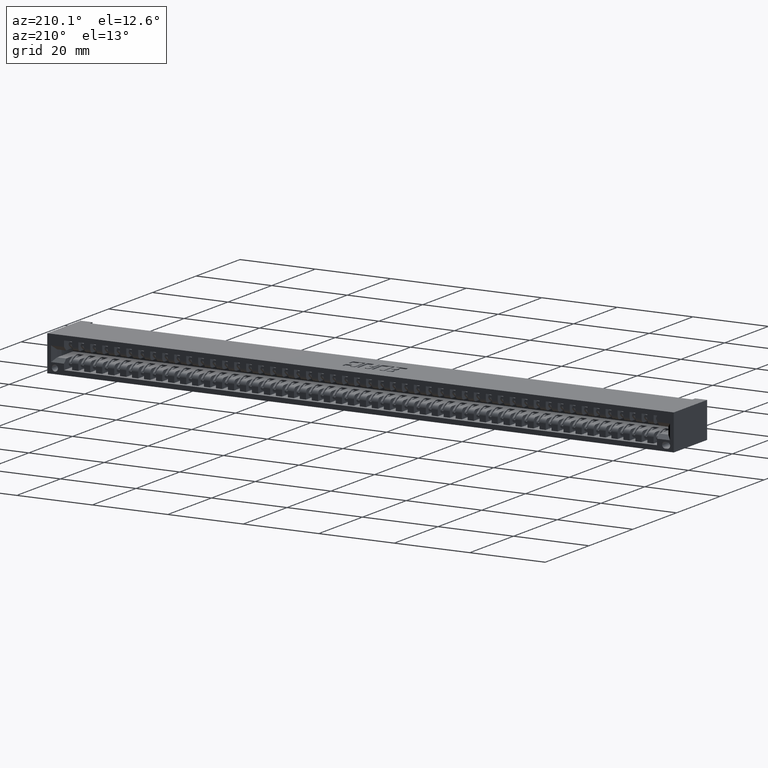
[diagram: clean part render]
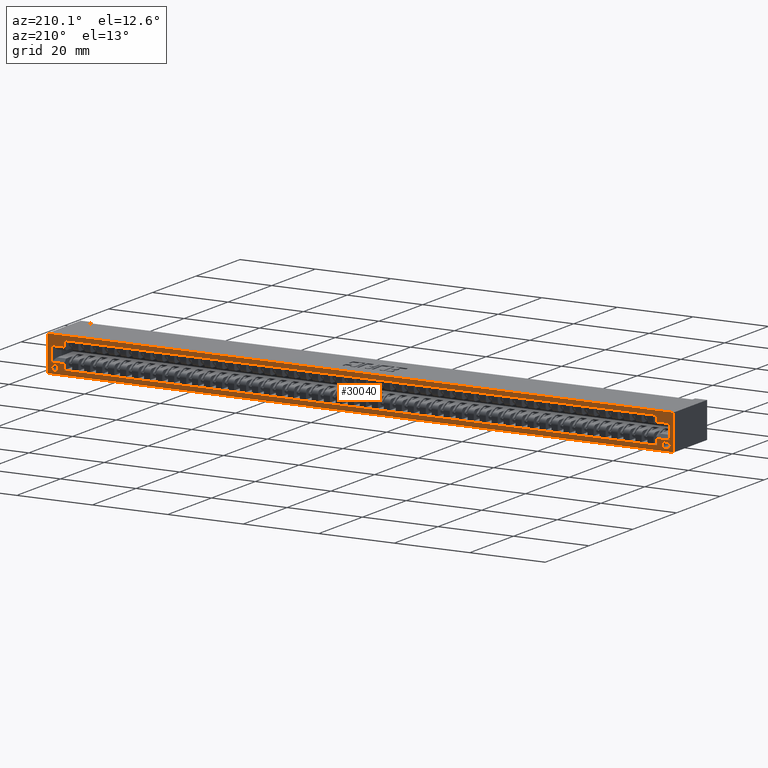
[diagram: same view with one face highlighted and labeled with its STEP entity id]
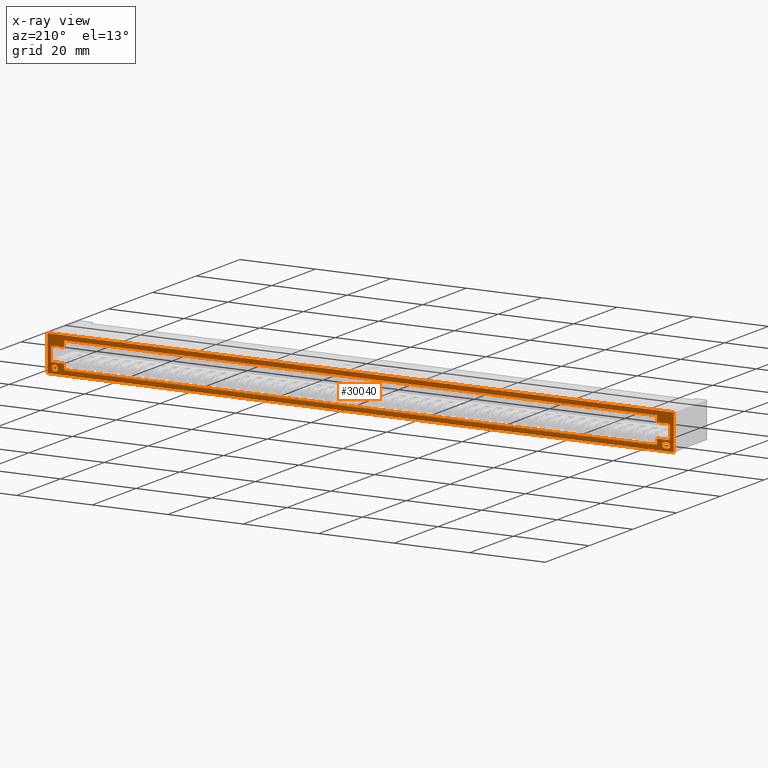
[diagram: x-ray of the same camera — body ghosted, the highlighted face saturated]
A machine part, auxiliary view. The second image highlights one B-rep face of the part: STEP entity #30040.
The next image is the same camera in x-ray: the body ghosted, the highlighted face saturated — about 0% of this face is hidden behind the body in this view.
In plain terms, the highlighted planar face has unit normal (0, -1, 0).
Its self-contained STEP definition (entity closure, byte-faithful):
#250 = CARTESIAN_POINT ( 'NONE',  ( 6.717500000000002900, 0.5999999999999999800, -0.3130000000000000600 ) ) ;
#653 = CARTESIAN_POINT ( 'NONE',  ( 0.3315000000000000200, 0.5999999999999999800, -0.3440000000000000800 ) ) ;
#1328 = CARTESIAN_POINT ( 'NONE',  ( 0.4375000000000000600, 0.5999999999999999800, -0.3224999999999998400 ) ) ;
#1540 = CARTESIAN_POINT ( 'NONE',  ( 0.4375000000000000600, 0.5999999999999999800, -0.2619999999999996800 ) ) ;
#1578 = ORIENTED_EDGE ( 'NONE', *, *, #14522, .F. ) ;
#1626 = CARTESIAN_POINT ( 'NONE',  ( 0.3315000000000000200, 0.5999999999999999800, -0.2820000000000000800 ) ) ;
#1812 = LINE ( 'NONE', #20284, #27057 ) ;
#1988 = EDGE_CURVE ( 'NONE', #6379, #13972, #26928, .T. ) ;
#2016 = VECTOR ( 'NONE', #6618, 39.37007874015748100 ) ;
#2038 = CARTESIAN_POINT ( 'NONE',  ( 0.3315000000000000700, 0.5999999999999999800, -0.3130000000000000600 ) ) ;
#2219 = EDGE_CURVE ( 'NONE', #20647, #12980, #16965, .T. ) ;
#2405 = CARTESIAN_POINT ( 'NONE',  ( 0.4375000000000000600, 0.5999999999999998700, -0.1080000000000005000 ) ) ;
#2818 = DIRECTION ( 'NONE',  ( 0.0000000000000000000, 0.0000000000000000000, 1.000000000000000000 ) ) ;
#3021 = VERTEX_POINT ( 'NONE', #29944 ) ;
#3065 = LINE ( 'NONE', #5318, #4252 ) ;
#3125 = VERTEX_POINT ( 'NONE', #8404 ) ;
#3377 = LINE ( 'NONE', #11427, #27874 ) ;
#3465 = DIRECTION ( 'NONE',  ( -0.0000000000000000000, -0.0000000000000000000, 1.000000000000000000 ) ) ;
#3680 = CARTESIAN_POINT ( 'NONE',  ( 6.622500000000000500, 0.5999999999999999800, -0.2619999999999996800 ) ) ;
#3760 = VERTEX_POINT ( 'NONE', #10284 ) ;
#3768 = ORIENTED_EDGE ( 'NONE', *, *, #7757, .T. ) ;
#3865 = CARTESIAN_POINT ( 'NONE',  ( 6.797500000000002100, 0.5999999999999999800, -0.3699999999999989400 ) ) ;
#4156 = DIRECTION ( 'NONE',  ( 0.0000000000000000000, 0.0000000000000000000, 1.000000000000000000 ) ) ;
#4226 = DIRECTION ( 'NONE',  ( 0.0000000000000000000, -2.483498176058424700E-016, 1.000000000000000000 ) ) ;
#4252 = VECTOR ( 'NONE', #27442, 39.37007874015748100 ) ;
#4406 = CARTESIAN_POINT ( 'NONE',  ( -1.321351533372425100E-033, 0.5999999999999999800, -0.1080000000000005000 ) ) ;
#4630 = DIRECTION ( 'NONE',  ( 0.0000000000000000000, 0.0000000000000000000, 1.000000000000000000 ) ) ;
#5173 = VERTEX_POINT ( 'NONE', #29647 ) ;
#5318 = CARTESIAN_POINT ( 'NONE',  ( 0.0000000000000000000, 0.5999999999999999800, -0.3700000000000001600 ) ) ;
#6052 = ORIENTED_EDGE ( 'NONE', *, *, #13263, .T. ) ;
#6379 = VERTEX_POINT ( 'NONE', #26903 ) ;
#6407 = ORIENTED_EDGE ( 'NONE', *, *, #20281, .T. ) ;
#6618 = DIRECTION ( 'NONE',  ( -1.000000000000000000, 0.0000000000000000000, 0.0000000000000000000 ) ) ;
#6661 = VECTOR ( 'NONE', #25716, 39.37007874015748100 ) ;
#6827 = ORIENTED_EDGE ( 'NONE', *, *, #19364, .T. ) ;
#7146 = EDGE_CURVE ( 'NONE', #17540, #12764, #20042, .T. ) ;
#7391 = FACE_OUTER_BOUND ( 'NONE', #8756, .T. ) ;
#7476 = EDGE_CURVE ( 'NONE', #23067, #17576, #30368, .T. ) ;
#7757 = EDGE_CURVE ( 'NONE', #25299, #3021, #25365, .T. ) ;
#7833 = DIRECTION ( 'NONE',  ( 0.0000000000000000000, -2.483498176058424700E-016, 1.000000000000000000 ) ) ;
#7882 = ORIENTED_EDGE ( 'NONE', *, *, #1988, .F. ) ;
#7962 = EDGE_CURVE ( 'NONE', #13972, #10840, #18102, .T. ) ;
#8055 = LINE ( 'NONE', #23600, #26052 ) ;
#8098 = EDGE_LOOP ( 'NONE', ( #29042, #15250 ) ) ;
#8170 = DIRECTION ( 'NONE',  ( 1.000000000000000000, 0.0000000000000000000, 0.0000000000000000000 ) ) ;
#8285 = VERTEX_POINT ( 'NONE', #3865 ) ;
#8404 = CARTESIAN_POINT ( 'NONE',  ( 6.717500000000002900, 0.5999999999999999800, -0.3450000000000003600 ) ) ;
#8588 = ORIENTED_EDGE ( 'NONE', *, *, #13516, .T. ) ;
#8727 = DIRECTION ( 'NONE',  ( 1.000000000000000000, 0.0000000000000000000, 3.104372720073037000E-015 ) ) ;
#8756 = EDGE_LOOP ( 'NONE', ( #26638, #28676, #6052, #14917 ) ) ;
#8807 = ORIENTED_EDGE ( 'NONE', *, *, #26049, .T. ) ;
#8875 = VECTOR ( 'NONE', #4226, 39.37007874015748100 ) ;
#9137 = DIRECTION ( 'NONE',  ( 0.0000000000000000000, -1.000000000000000000, 0.0000000000000000000 ) ) ;
#9314 = DIRECTION ( 'NONE',  ( -1.000000000000000000, 0.0000000000000000000, 0.0000000000000000000 ) ) ;
#9917 = VECTOR ( 'NONE', #21703, 39.37007874015748100 ) ;
#10184 = AXIS2_PLACEMENT_3D ( 'NONE', #14415, #11858, #21654 ) ;
#10260 = DIRECTION ( 'NONE',  ( 0.0000000000000000000, -2.483498176058424700E-016, 1.000000000000000000 ) ) ;
#10284 = CARTESIAN_POINT ( 'NONE',  ( 6.757500000000001200, 0.5999999999999999800, -0.1080000000000005000 ) ) ;
#10405 = VERTEX_POINT ( 'NONE', #27363 ) ;
#10657 = ORIENTED_EDGE ( 'NONE', *, *, #7962, .F. ) ;
#10840 = VERTEX_POINT ( 'NONE', #30325 ) ;
#11414 = ORIENTED_EDGE ( 'NONE', *, *, #7476, .F. ) ;
#11427 = CARTESIAN_POINT ( 'NONE',  ( 0.4375000000000000600, 0.5999999999999998700, -0.04750000000000024300 ) ) ;
#11858 = DIRECTION ( 'NONE',  ( 0.0000000000000000000, 1.000000000000000000, 0.0000000000000000000 ) ) ;
#12025 = FACE_BOUND ( 'NONE', #31460, .T. ) ;
#12629 = LINE ( 'NONE', #21516, #9917 ) ;
#12764 = VERTEX_POINT ( 'NONE', #23959 ) ;
#12781 = LINE ( 'NONE', #28061, #6661 ) ;
#12861 = DIRECTION ( 'NONE',  ( 0.0000000000000000000, 0.0000000000000000000, -1.000000000000000000 ) ) ;
#12980 = VERTEX_POINT ( 'NONE', #3680 ) ;
#13064 = VECTOR ( 'NONE', #29948, 39.37007874015748100 ) ;
#13069 = DIRECTION ( 'NONE',  ( 0.0000000000000000000, 0.0000000000000000000, 1.000000000000000000 ) ) ;
#13263 = EDGE_CURVE ( 'NONE', #8285, #15379, #3065, .T. ) ;
#13516 = EDGE_CURVE ( 'NONE', #5173, #3760, #8055, .T. ) ;
#13537 = VECTOR ( 'NONE', #10260, 39.37007874015748100 ) ;
#13972 = VERTEX_POINT ( 'NONE', #1626 ) ;
#14415 = CARTESIAN_POINT ( 'NONE',  ( 0.3534999999999999300, 0.5999999999999999800, -0.3130000000000000600 ) ) ;
#14522 = EDGE_CURVE ( 'NONE', #31013, #16533, #3377, .T. ) ;
#14917 = ORIENTED_EDGE ( 'NONE', *, *, #23742, .F. ) ;
#15181 = AXIS2_PLACEMENT_3D ( 'NONE', #2038, #19174, #4630 ) ;
#15250 = ORIENTED_EDGE ( 'NONE', *, *, #25457, .F. ) ;
#15306 = EDGE_CURVE ( 'NONE', #26081, #3125, #22464, .T. ) ;
#15344 = ORIENTED_EDGE ( 'NONE', *, *, #26171, .F. ) ;
#15379 = VERTEX_POINT ( 'NONE', #17350 ) ;
#15490 = LINE ( 'NONE', #4406, #22746 ) ;
#16108 = VECTOR ( 'NONE', #3465, 39.37007874015748100 ) ;
#16154 = CARTESIAN_POINT ( 'NONE',  ( 6.717500000000002900, 0.5999999999999999800, -0.3130000000000000600 ) ) ;
#16223 = EDGE_CURVE ( 'NONE', #12980, #5173, #1812, .T. ) ;
#16253 = DIRECTION ( 'NONE',  ( 0.0000000000000000000, 1.000000000000000000, 0.0000000000000000000 ) ) ;
#16533 = VERTEX_POINT ( 'NONE', #29232 ) ;
#16934 = ORIENTED_EDGE ( 'NONE', *, *, #23562, .T. ) ;
#16965 = LINE ( 'NONE', #29505, #13537 ) ;
#16981 = VECTOR ( 'NONE', #7833, 39.37007874015748100 ) ;
#17160 = CARTESIAN_POINT ( 'NONE',  ( 6.622500000000000500, 0.5999999999999999800, -0.3224999999999996800 ) ) ;
#17321 = VECTOR ( 'NONE', #8727, 39.37007874015748100 ) ;
#17350 = CARTESIAN_POINT ( 'NONE',  ( 0.2625000000000000100, 0.5999999999999999800, -0.3700000000000001600 ) ) ;
#17540 = VERTEX_POINT ( 'NONE', #22178 ) ;
#17576 = VERTEX_POINT ( 'NONE', #1540 ) ;
#18071 = LINE ( 'NONE', #27851, #16108 ) ;
#18102 = LINE ( 'NONE', #23502, #17321 ) ;
#18332 = CIRCLE ( 'NONE', #26517, 0.03200000000000033400 ) ;
#18741 = VECTOR ( 'NONE', #12861, 39.37007874015748100 ) ;
#19125 = LINE ( 'NONE', #29428, #24093 ) ;
#19174 = DIRECTION ( 'NONE',  ( 0.0000000000000000000, 1.000000000000000000, 0.0000000000000000000 ) ) ;
#19177 = ORIENTED_EDGE ( 'NONE', *, *, #16223, .T. ) ;
#19364 = EDGE_CURVE ( 'NONE', #3760, #30440, #15490, .T. ) ;
#19887 = DIRECTION ( 'NONE',  ( 0.0000000000000000000, 0.0000000000000000000, -1.000000000000000000 ) ) ;
#20012 = CARTESIAN_POINT ( 'NONE',  ( 0.4375000000000000600, 0.5999999999999999800, -0.3224999999999998400 ) ) ;
#20042 = LINE ( 'NONE', #22809, #29241 ) ;
#20281 = EDGE_CURVE ( 'NONE', #10405, #17576, #12781, .T. ) ;
#20284 = CARTESIAN_POINT ( 'NONE',  ( -1.321351533372425100E-033, 0.5999999999999999800, -0.2619999999999996800 ) ) ;
#20411 = CARTESIAN_POINT ( 'NONE',  ( 0.3534999999999999300, 0.5999999999999999800, -0.3440000000000001900 ) ) ;
#20647 = VERTEX_POINT ( 'NONE', #24853 ) ;
#21024 = CARTESIAN_POINT ( 'NONE',  ( -1.321351533372425100E-033, 0.5999999999999999800, -0.1080000000000005000 ) ) ;
#21125 = DIRECTION ( 'NONE',  ( 1.000000000000000000, -0.0000000000000000000, -0.0000000000000000000 ) ) ;
#21377 = EDGE_CURVE ( 'NONE', #25299, #31013, #29165, .T. ) ;
#21516 = CARTESIAN_POINT ( 'NONE',  ( 0.4375000000000000600, 0.5999999999999999800, -0.3224999999999998400 ) ) ;
#21639 = EDGE_LOOP ( 'NONE', ( #29623, #3768, #16934, #6407, #11414, #25089, #30842, #19177, #8588, #6827, #8807, #1578 ) ) ;
#21654 = DIRECTION ( 'NONE',  ( 0.0000000000000000000, 0.0000000000000000000, 1.000000000000000000 ) ) ;
#21703 = DIRECTION ( 'NONE',  ( 1.000000000000000000, -0.0000000000000000000, -0.0000000000000000000 ) ) ;
#21823 = VECTOR ( 'NONE', #26876, 39.37007874015748100 ) ;
#22101 = LINE ( 'NONE', #27482, #18741 ) ;
#22119 = CARTESIAN_POINT ( 'NONE',  ( 6.717500000000002900, 0.5999999999999999800, -0.2809999999999996900 ) ) ;
#22178 = CARTESIAN_POINT ( 'NONE',  ( 0.2625000000000000100, 0.5999999999999999800, 0.0000000000000000000 ) ) ;
#22268 = DIRECTION ( 'NONE',  ( 0.0000000000000000000, 1.000000000000000000, 0.0000000000000000000 ) ) ;
#22464 = CIRCLE ( 'NONE', #30175, 0.03200000000000033400 ) ;
#22746 = VECTOR ( 'NONE', #9314, 39.37007874015748100 ) ;
#22809 = CARTESIAN_POINT ( 'NONE',  ( 0.0000000000000000000, 0.5999999999999999800, 0.0000000000000000000 ) ) ;
#23067 = VERTEX_POINT ( 'NONE', #1328 ) ;
#23106 = ORIENTED_EDGE ( 'NONE', *, *, #29453, .F. ) ;
#23424 = EDGE_CURVE ( 'NONE', #23067, #20647, #12629, .T. ) ;
#23502 = CARTESIAN_POINT ( 'NONE',  ( 0.3315000000000000200, 0.5999999999999999800, -0.2820000000000000800 ) ) ;
#23562 = EDGE_CURVE ( 'NONE', #3021, #10405, #19125, .T. ) ;
#23600 = CARTESIAN_POINT ( 'NONE',  ( 6.757500000000001200, 0.5999999999999999800, -0.3700000000000001600 ) ) ;
#23742 = EDGE_CURVE ( 'NONE', #17540, #15379, #22101, .T. ) ;
#23865 = FACE_BOUND ( 'NONE', #8098, .T. ) ;
#23959 = CARTESIAN_POINT ( 'NONE',  ( 6.797500000000002100, 0.5999999999999999800, 0.0000000000000000000 ) ) ;
#24093 = VECTOR ( 'NONE', #19887, 39.37007874015748100 ) ;
#24544 = LINE ( 'NONE', #17160, #21823 ) ;
#24853 = CARTESIAN_POINT ( 'NONE',  ( 6.622500000000000500, 0.5999999999999999800, -0.3224999999999996800 ) ) ;
#25045 = CIRCLE ( 'NONE', #10184, 0.03100000000000009300 ) ;
#25089 = ORIENTED_EDGE ( 'NONE', *, *, #23424, .T. ) ;
#25147 = AXIS2_PLACEMENT_3D ( 'NONE', #28590, #9137, #26246 ) ;
#25299 = VERTEX_POINT ( 'NONE', #2405 ) ;
#25365 = LINE ( 'NONE', #21024, #2016 ) ;
#25403 = FACE_BOUND ( 'NONE', #21639, .T. ) ;
#25457 = EDGE_CURVE ( 'NONE', #3125, #26081, #18332, .T. ) ;
#25619 = EDGE_CURVE ( 'NONE', #8285, #12764, #18071, .T. ) ;
#25716 = DIRECTION ( 'NONE',  ( 1.000000000000000000, 0.0000000000000000000, 0.0000000000000000000 ) ) ;
#26049 = EDGE_CURVE ( 'NONE', #30440, #16533, #24544, .T. ) ;
#26052 = VECTOR ( 'NONE', #4156, 39.37007874015748100 ) ;
#26081 = VERTEX_POINT ( 'NONE', #22119 ) ;
#26171 = EDGE_CURVE ( 'NONE', #28536, #6379, #31022, .T. ) ;
#26228 = CARTESIAN_POINT ( 'NONE',  ( 0.4375000000000000600, 0.5999999999999999800, -0.3224999999999998400 ) ) ;
#26246 = DIRECTION ( 'NONE',  ( 0.0000000000000000000, -0.0000000000000000000, -1.000000000000000000 ) ) ;
#26517 = AXIS2_PLACEMENT_3D ( 'NONE', #250, #22268, #2818 ) ;
#26596 = CARTESIAN_POINT ( 'NONE',  ( 6.622500000000000500, 0.5999999999999998700, -0.1080000000000005000 ) ) ;
#26638 = ORIENTED_EDGE ( 'NONE', *, *, #7146, .T. ) ;
#26876 = DIRECTION ( 'NONE',  ( 0.0000000000000000000, -2.483498176058424700E-016, 1.000000000000000000 ) ) ;
#26903 = CARTESIAN_POINT ( 'NONE',  ( 0.3315000000000000200, 0.5999999999999999800, -0.3440000000000000800 ) ) ;
#26928 = CIRCLE ( 'NONE', #15181, 0.03099999999999998900 ) ;
#27057 = VECTOR ( 'NONE', #30151, 39.37007874015748100 ) ;
#27363 = CARTESIAN_POINT ( 'NONE',  ( 0.3025000000000004400, 0.5999999999999999800, -0.2619999999999996800 ) ) ;
#27442 = DIRECTION ( 'NONE',  ( -1.000000000000000000, -0.0000000000000000000, -1.934736539422282400E-017 ) ) ;
#27482 = CARTESIAN_POINT ( 'NONE',  ( 0.2625000000000000100, 0.5999999999999999800, 0.0000000000000000000 ) ) ;
#27851 = CARTESIAN_POINT ( 'NONE',  ( 6.797500000000002100, 0.5999999999999999800, 0.0000000000000000000 ) ) ;
#27874 = VECTOR ( 'NONE', #21125, 39.37007874015748100 ) ;
#28061 = CARTESIAN_POINT ( 'NONE',  ( -1.321351533372425100E-033, 0.5999999999999999800, -0.2619999999999996800 ) ) ;
#28492 = PLANE ( 'NONE',  #25147 ) ;
#28536 = VERTEX_POINT ( 'NONE', #20411 ) ;
#28590 = CARTESIAN_POINT ( 'NONE',  ( -1.321351533372425100E-033, 0.5999999999999999800, -0.3700000000000001600 ) ) ;
#28676 = ORIENTED_EDGE ( 'NONE', *, *, #25619, .F. ) ;
#29042 = ORIENTED_EDGE ( 'NONE', *, *, #15306, .F. ) ;
#29165 = LINE ( 'NONE', #26228, #8875 ) ;
#29232 = CARTESIAN_POINT ( 'NONE',  ( 6.622500000000000500, 0.5999999999999998700, -0.04750000000000012500 ) ) ;
#29241 = VECTOR ( 'NONE', #8170, 39.37007874015748100 ) ;
#29428 = CARTESIAN_POINT ( 'NONE',  ( 0.3025000000000004400, 0.5999999999999999800, -0.3700000000000001600 ) ) ;
#29453 = EDGE_CURVE ( 'NONE', #10840, #28536, #25045, .T. ) ;
#29505 = CARTESIAN_POINT ( 'NONE',  ( 6.622500000000000500, 0.5999999999999999800, -0.3224999999999996800 ) ) ;
#29623 = ORIENTED_EDGE ( 'NONE', *, *, #21377, .F. ) ;
#29647 = CARTESIAN_POINT ( 'NONE',  ( 6.757500000000001200, 0.5999999999999999800, -0.2619999999999996800 ) ) ;
#29944 = CARTESIAN_POINT ( 'NONE',  ( 0.3025000000000004400, 0.5999999999999999800, -0.1080000000000005000 ) ) ;
#29948 = DIRECTION ( 'NONE',  ( -1.000000000000000000, -0.0000000000000000000, 6.208745440146074000E-015 ) ) ;
#30040 = ADVANCED_FACE ( 'NONE', ( #23865, #12025, #7391, #25403 ), #28492, .F. ) ;
#30151 = DIRECTION ( 'NONE',  ( 1.000000000000000000, 0.0000000000000000000, 0.0000000000000000000 ) ) ;
#30153 = CARTESIAN_POINT ( 'NONE',  ( 0.4375000000000000600, 0.5999999999999998700, -0.04750000000000024300 ) ) ;
#30175 = AXIS2_PLACEMENT_3D ( 'NONE', #16154, #16253, #13069 ) ;
#30325 = CARTESIAN_POINT ( 'NONE',  ( 0.3534999999999999300, 0.5999999999999999800, -0.2819999999999999700 ) ) ;
#30368 = LINE ( 'NONE', #20012, #16981 ) ;
#30440 = VERTEX_POINT ( 'NONE', #26596 ) ;
#30842 = ORIENTED_EDGE ( 'NONE', *, *, #2219, .T. ) ;
#31013 = VERTEX_POINT ( 'NONE', #30153 ) ;
#31022 = LINE ( 'NONE', #653, #13064 ) ;
#31460 = EDGE_LOOP ( 'NONE', ( #10657, #7882, #15344, #23106 ) ) ;